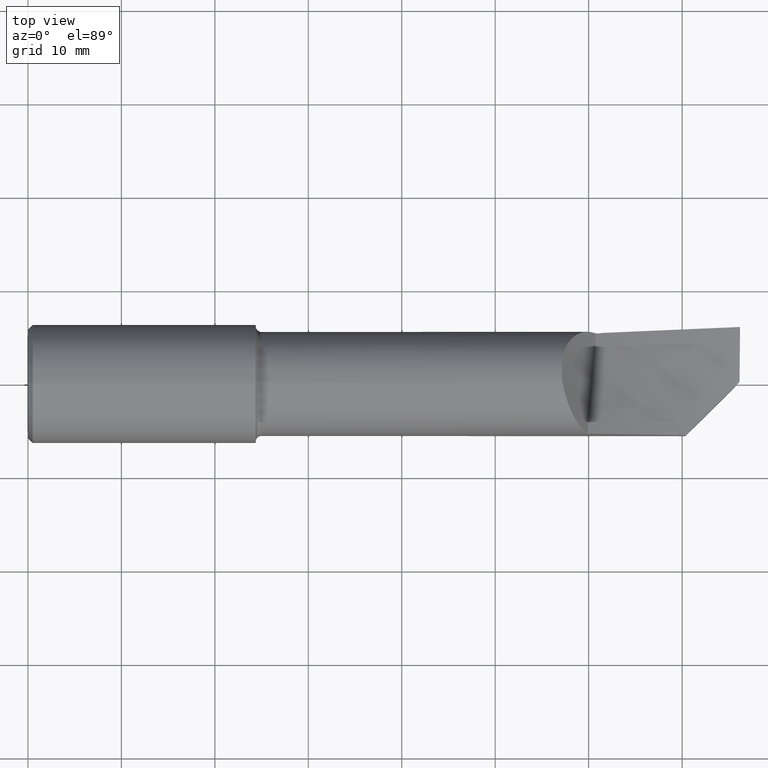
[diagram: clean part render]
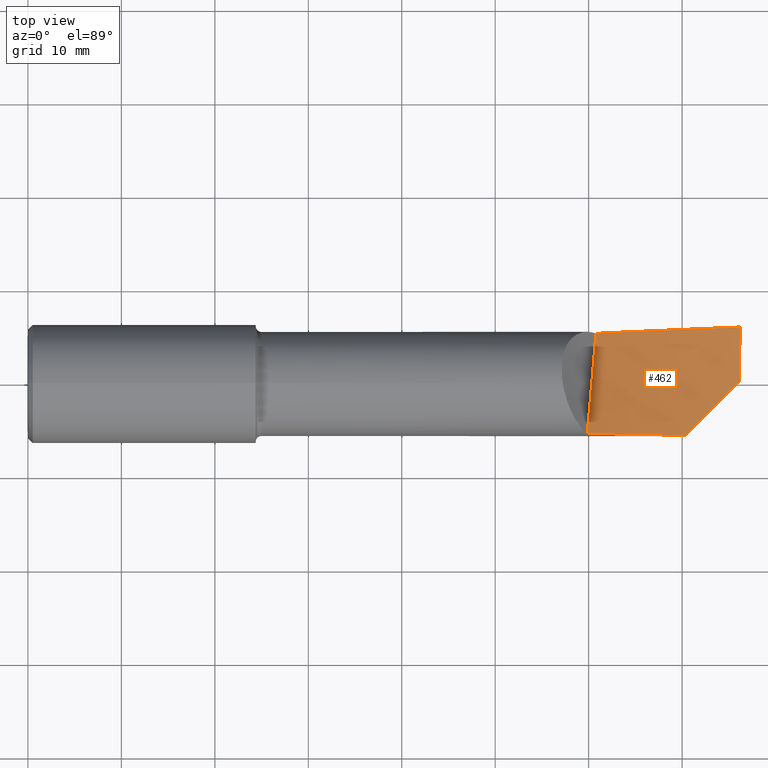
[diagram: same view with one face highlighted and labeled with its STEP entity id]
A machine part, top view. The second image highlights one B-rep face of the part: STEP entity #462.
In plain terms, the highlighted face is a freeform B-spline surface patch.
Its self-contained STEP definition (entity closure, byte-faithful):
#6 = EDGE_CURVE ( 'NONE', #518, #96, #425, .T. ) ;
#9 = CARTESIAN_POINT ( 'NONE',  ( 2.564429700643780841, -0.2143015012764732941, 0.05261254719292924459 ) ) ;
#11 = CARTESIAN_POINT ( 'NONE',  ( 2.356559098504054095, -0.2088777642239234011, 0.06906576061805747013 ) ) ;
#60 =( BOUNDED_CURVE ( )  B_SPLINE_CURVE ( 2, ( #388, #372, #670 ),
 .UNSPECIFIED., .F., .F. ) 
 B_SPLINE_CURVE_WITH_KNOTS ( ( 3, 3 ),
 ( 0.5266614230579080846, 0.5400257304258027080 ),
 .UNSPECIFIED. ) 
 CURVE ( )  GEOMETRIC_REPRESENTATION_ITEM ( )  RATIONAL_B_SPLINE_CURVE ( ( 0.9955652346528232055, 0.9953917806560831361, 0.9952287059344254727 ) ) 
 REPRESENTATION_ITEM ( '' )  );
#71 = CARTESIAN_POINT ( 'NONE',  ( 2.418486830548867594, 0.2160475044874675399, -0.04882782362294733197 ) ) ;
#94 = CARTESIAN_POINT ( 'NONE',  ( 3.000000000000000444, 0.4258375057284731757, 0.01320825401576949422 ) ) ;
#96 = VERTEX_POINT ( 'NONE', #373 ) ;
#97 = CARTESIAN_POINT ( 'NONE',  ( 2.612381827555384728, 0.2257843348541355988, -0.03415235492857734284 ) ) ;
#107 = VERTEX_POINT ( 'NONE', #729 ) ;
#118 = CARTESIAN_POINT ( 'NONE',  ( 1.717948717948720727, -0.3527962921881071523, 0.2384890030643342096 ) ) ;
#152 = CARTESIAN_POINT ( 'NONE',  ( 2.038461538461540545, 0.4058074895221152611, -0.1396724983455376601 ) ) ;
#156 = EDGE_CURVE ( 'NONE', #439, #518, #479, .T. ) ;
#168 = CARTESIAN_POINT ( 'NONE',  ( 2.998256711176775724, 0.08645143747529006328, -0.003266647090703632232 ) ) ;
#172 = CARTESIAN_POINT ( 'NONE',  ( 2.038461538461540101, -0.1360584583238938217, 0.04682475114047649628 ) ) ;
#173 = ORIENTED_EDGE ( 'NONE', *, *, #414, .F. ) ;
#177 = CARTESIAN_POINT ( 'NONE',  ( 2.418486830548867594, 0.2160475044874675399, -0.04882782362294733197 ) ) ;
#182 = CARTESIAN_POINT ( 'NONE',  ( 2.679487179487180182, 0.1402361651789809094, -0.03310749311051140731 ) ) ;
#188 = CARTESIAN_POINT ( 'NONE',  ( 2.846075425691748428, -0.1422767271168798586, 0.01425986872581100004 ) ) ;
#192 = B_SPLINE_CURVE_WITH_KNOTS ( 'NONE', 3,
 ( #437, #609, #622, #11 ),
 .UNSPECIFIED., .F., .F.,
 ( 4, 4 ),
 ( 0.000000000000000000, 1.000000000000000000 ),
 .UNSPECIFIED. ) ;
#227 = CARTESIAN_POINT ( 'NONE',  ( 2.358974358974360364, -0.1396846007746824214, 0.02986396988880485326 ) ) ;
#233 = CARTESIAN_POINT ( 'NONE',  ( 2.357725844419105599, -0.2089080893730914379, 0.06897406050240462161 ) ) ;
#240 = CARTESIAN_POINT ( 'NONE',  ( 3.000000000000000444, -0.4232169687476833864, 0.04721891282440422027 ) ) ;
#253 = CARTESIAN_POINT ( 'NONE',  ( 2.806231657992947159, 0.2339654237526749281, -0.01788766252031828360 ) ) ;
#274 = CARTESIAN_POINT ( 'NONE',  ( 3.000000000000000444, 0.2402499999999999636, 0.000000000000000000 ) ) ;
#287 = CARTESIAN_POINT ( 'NONE',  ( 2.038461538461540101, 0.1282380153811019941, -0.06570616055808793654 ) ) ;
#289 = VERTEX_POINT ( 'NONE', #671 ) ;
#315 = CARTESIAN_POINT ( 'NONE',  ( 2.679487179487180182, 0.4274412781259713245, -0.03849778046020245481 ) ) ;
#326 = VERTEX_POINT ( 'NONE', #71 ) ;
#330 = ORIENTED_EDGE ( 'NONE', *, *, #6, .F. ) ;
#346 = ORIENTED_EDGE ( 'NONE', *, *, #543, .F. ) ;
#358 = CARTESIAN_POINT ( 'NONE',  ( 2.410000000000000142, 0.2144189151190963039, -0.04923950486296325285 ) ) ;
#370 = ORIENTED_EDGE ( 'NONE', *, *, #560, .T. ) ;
#372 = CARTESIAN_POINT ( 'NONE',  ( 2.401469481609322276, 0.2142601318164511770, -0.04993094446185698809 ) ) ;
#373 = CARTESIAN_POINT ( 'NONE',  ( 2.356559098504054095, -0.2088777642239234011, 0.06906576061805747013 ) ) ;
#378 = CARTESIAN_POINT ( 'NONE',  ( 3.000000000000000444, 0.2402499999999999636, 0.000000000000000000 ) ) ;
#388 = CARTESIAN_POINT ( 'NONE',  ( 2.392944745247169713, 0.2140968924730453637, -0.05062134562993372833 ) ) ;
#402 = FACE_OUTER_BOUND ( 'NONE', #730, .T. ) ;
#403 = ORIENTED_EDGE ( 'NONE', *, *, #156, .F. ) ;
#404 = CARTESIAN_POINT ( 'NONE',  ( 1.717948717948720505, -0.1284787043503996806, 0.06242489022452848979 ) ) ;
#412 = CARTESIAN_POINT ( 'NONE',  ( 2.358974358974360364, -0.3996188273119117840, 0.1471292670482277631 ) ) ;
#414 = EDGE_CURVE ( 'NONE', #107, #326, #615, .T. ) ;
#415 = CARTESIAN_POINT ( 'NONE',  ( 2.358974358974360364, 0.1342370902800414656, -0.04940682683429966499 ) ) ;
#416 = CARTESIAN_POINT ( 'NONE',  ( 2.358974358974360364, -0.2089406661879938953, 0.06887523512059520736 ) ) ;
#422 = CARTESIAN_POINT ( 'NONE',  ( 2.771270714435557725, -0.2170814383730694797, 0.03571623039850647247 ) ) ;
#425 =( BOUNDED_CURVE ( )  B_SPLINE_CURVE ( 2, ( #478, #9, #416, #233, #649 ),
 .UNSPECIFIED., .F., .T. ) 
 B_SPLINE_CURVE_WITH_KNOTS ( ( 3, 2, 3 ),
 ( 0.1786485734947635962, 0.5000000000000000000, 0.5019619316750536520 ),
 .UNSPECIFIED. ) 
 CURVE ( )  GEOMETRIC_REPRESENTATION_ITEM ( )  RATIONAL_B_SPLINE_CURVE ( ( 0.9929648280793845760, 0.9916323561610864701, 0.9963010501997409119, 0.9962725466427000409, 0.9962442667737847479 ) ) 
 REPRESENTATION_ITEM ( '' )  );
#429 = CARTESIAN_POINT ( 'NONE',  ( 1.717948717948720505, 0.1185125768182977157, -0.08009619267214614091 ) ) ;
#437 = CARTESIAN_POINT ( 'NONE',  ( 2.392944745247169713, 0.2140968924730453637, -0.05062134562993372833 ) ) ;
#439 = VERTEX_POINT ( 'NONE', #585 ) ;
#454 = CARTESIAN_POINT ( 'NONE',  ( 2.998938641188132248, 0.1633380998407382989, -0.003177467661418186939 ) ) ;
#457 = ORIENTED_EDGE ( 'NONE', *, *, #496, .T. ) ;
#462 = ADVANCED_FACE ( 'NONE', ( #402 ), #687, .T. ) ;
#464 = CARTESIAN_POINT ( 'NONE',  ( 2.679487179487180182, -0.4174835547069452035, 0.09860675650306138795 ) ) ;
#478 = CARTESIAN_POINT ( 'NONE',  ( 2.771270714435557725, -0.2170814383730694797, 0.03571623039850647247 ) ) ;
#479 = B_SPLINE_CURVE_WITH_KNOTS ( 'NONE', 3,
 ( #485, #717, #188, #422 ),
 .UNSPECIFIED., .F., .F.,
 ( 4, 4 ),
 ( 7.367693421357766252E-05, 0.008267352743947886315 ),
 .UNSPECIFIED. ) ;
#485 = CARTESIAN_POINT ( 'NONE',  ( 2.997941307501976294, 0.009589154693347746311, -0.0003725554249013139489 ) ) ;
#496 = EDGE_CURVE ( 'NONE', #504, #326, #520, .T. ) ;
#504 = VERTEX_POINT ( 'NONE', #378 ) ;
#518 = VERTEX_POINT ( 'NONE', #713 ) ;
#520 = B_SPLINE_CURVE_WITH_KNOTS ( 'NONE', 3,
 ( #549, #253, #97, #728 ),
 .UNSPECIFIED., .F., .F.,
 ( 4, 4 ),
 ( 1.231178521876680363E-19, 0.01483563987091351954 ),
 .UNSPECIFIED. ) ;
#543 = EDGE_CURVE ( 'NONE', #289, #107, #60, .T. ) ;
#549 = CARTESIAN_POINT ( 'NONE',  ( 3.000000000000000444, 0.2402499999999999636, 0.000000000000000000 ) ) ;
#552 = B_SPLINE_CURVE_WITH_KNOTS ( 'NONE', 3,
 ( #274, #454, #168, #566 ),
 .UNSPECIFIED., .F., .F.,
 ( 4, 4 ),
 ( 3.946659672217948877E-16, 0.005858684638792389932 ),
 .UNSPECIFIED. ) ;
#553 = CARTESIAN_POINT ( 'NONE',  ( 1.717948717948720727, 0.3831985670997781201, -0.1862012283307211968 ) ) ;
#560 = EDGE_CURVE ( 'NONE', #289, #96, #192, .T. ) ;
#566 = CARTESIAN_POINT ( 'NONE',  ( 2.997941307501976294, 0.009589154693347746311, -0.0003725554249013139489 ) ) ;
#585 = CARTESIAN_POINT ( 'NONE',  ( 2.997941307501976294, 0.009589154693347746311, -0.0003725554249013139489 ) ) ;
#607 = CARTESIAN_POINT ( 'NONE',  ( 2.358974358974360364, 0.4166243838240432651, -0.08908513940287006438 ) ) ;
#609 = CARTESIAN_POINT ( 'NONE',  ( 2.380960247964671872, 0.07009182744065006743, -0.02311703390389477017 ) ) ;
#615 = B_SPLINE_CURVE_WITH_KNOTS ( 'NONE', 3,
 ( #358, #701, #634, #177 ),
 .UNSPECIFIED., .F., .F.,
 ( 4, 4 ),
 ( 0.000000000000000000, 0.0002197412204927665644 ),
 .UNSPECIFIED. ) ;
#622 = CARTESIAN_POINT ( 'NONE',  ( 2.368992473848769542, -0.07181561011661147242, 0.01702505518877556884 ) ) ;
#634 = CARTESIAN_POINT ( 'NONE',  ( 2.415657971079498534, 0.2155047129925770355, -0.04896678893848495362 ) ) ;
#637 = EDGE_CURVE ( 'NONE', #504, #439, #552, .T. ) ;
#638 = CARTESIAN_POINT ( 'NONE',  ( 3.000000000000000000, 0.1421602319866792363, -0.01584611580735217559 ) ) ;
#645 = CARTESIAN_POINT ( 'NONE',  ( 2.038461538461540545, -0.3817540999168784754, 0.1956517775933941383 ) ) ;
#649 = CARTESIAN_POINT ( 'NONE',  ( 2.356559098504054095, -0.2088777642239234011, 0.06906576061805747013 ) ) ;
#670 = CARTESIAN_POINT ( 'NONE',  ( 2.410000000000000142, 0.2144189151190963039, -0.04923950486296325285 ) ) ;
#671 = CARTESIAN_POINT ( 'NONE',  ( 2.392944745247169713, 0.2140968924730453637, -0.05062134562993372833 ) ) ;
#687 =( BOUNDED_SURFACE ( )  B_SPLINE_SURFACE ( 3, 2, ( 
 ( #240, #464, #412, #645, #118 ),
 ( #709, #753, #227, #172, #404 ),
 ( #638, #182, #415, #287, #429 ),
 ( #94, #315, #607, #152, #553 ) ),
 .UNSPECIFIED., .F., .F., .F. ) 
 B_SPLINE_SURFACE_WITH_KNOTS ( ( 4, 4 ),
 ( 3, 2, 3 ),
 ( 0.000000000000000000, 1.000000000000000000 ),
 ( 0.000000000000000000, 0.5000000000000000000, 1.000000000000000000 ),
 .UNSPECIFIED. ) 
 GEOMETRIC_REPRESENTATION_ITEM ( )  RATIONAL_B_SPLINE_SURFACE ( (
 ( 1.000000000000000000, 0.9927088740980539727, 1.000000000000000000, 0.9927088740980539727, 1.000000000000000000),
 ( 0.9932804858608129672, 0.9860383527824556626, 0.9932804858608129672, 0.9860383527824556626, 0.9932804858608129672),
 ( 0.9932804858608129672, 0.9860383527824556626, 0.9932804858608129672, 0.9860383527824556626, 0.9932804858608129672),
 ( 1.000000000000000000, 0.9927088740980539727, 1.000000000000000000, 0.9927088740980539727, 1.000000000000000000) ) ) 
 REPRESENTATION_ITEM ( '' )  SURFACE ( )  );
#701 = CARTESIAN_POINT ( 'NONE',  ( 2.412829028078358196, 0.2149618471159612243, -0.04910401580184055315 ) ) ;
#709 = CARTESIAN_POINT ( 'NONE',  ( 3.000000000000000000, -0.1427725359348056000, -0.004432535825742341291 ) ) ;
#713 = CARTESIAN_POINT ( 'NONE',  ( 2.771270714435557725, -0.2170814383730694797, 0.03571623039850647247 ) ) ;
#717 = CARTESIAN_POINT ( 'NONE',  ( 2.921631811082995522, -0.06672034172563212628, 0.002224270572586053204 ) ) ;
#726 = ORIENTED_EDGE ( 'NONE', *, *, #637, .F. ) ;
#728 = CARTESIAN_POINT ( 'NONE',  ( 2.418486830548867594, 0.2160475044874675399, -0.04882782362294733197 ) ) ;
#729 = CARTESIAN_POINT ( 'NONE',  ( 2.410000000000000142, 0.2144189151190963039, -0.04923950486296325285 ) ) ;
#730 = EDGE_LOOP ( 'NONE', ( #726, #457, #173, #346, #370, #330, #403 ) ) ;
#753 = CARTESIAN_POINT ( 'NONE',  ( 2.679487179487180182, -0.1433107432254709379, 0.01290318863713321371 ) ) ;